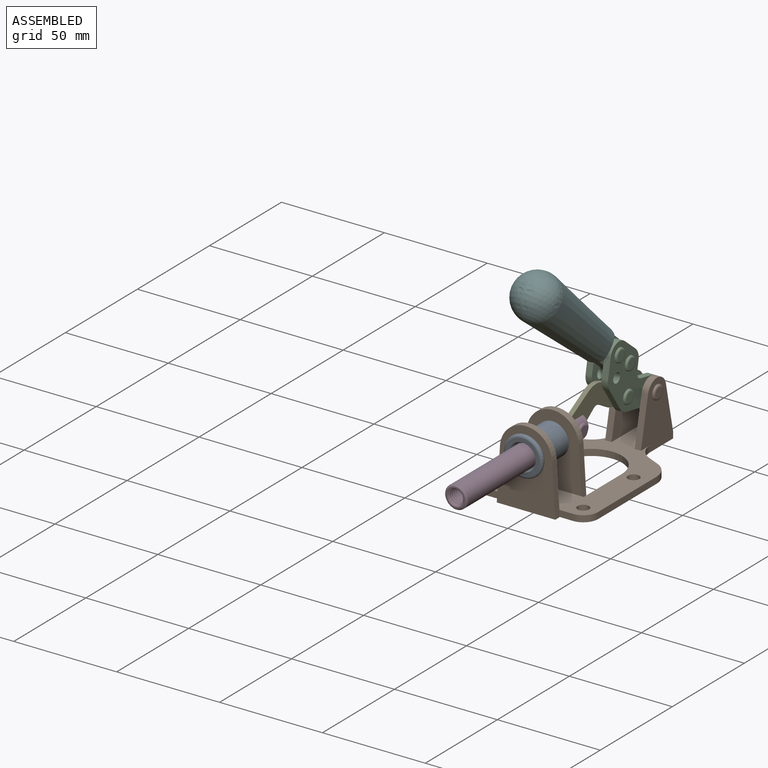
[diagram: assembled view]
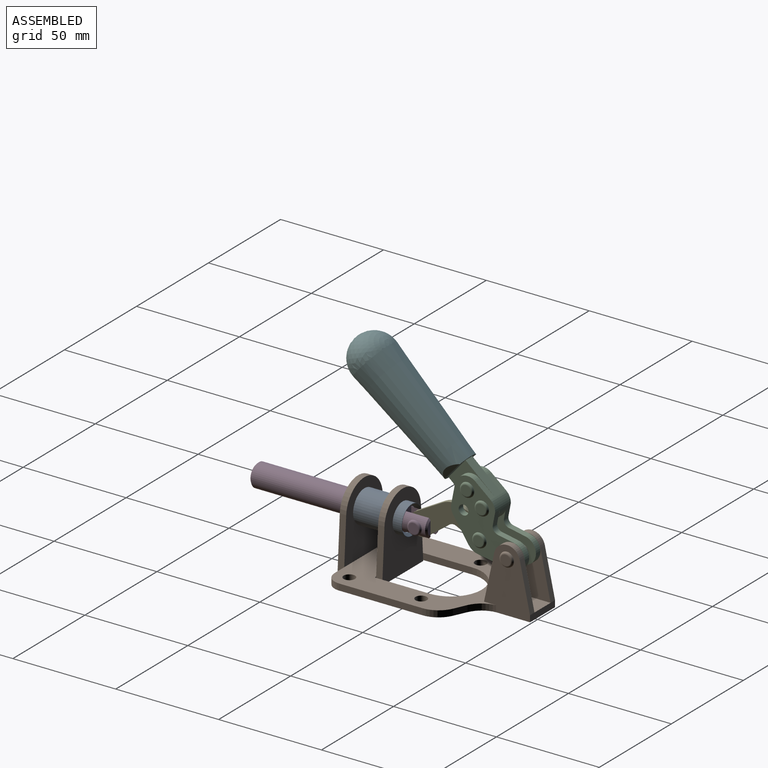
[diagram: assembled view, second angle]
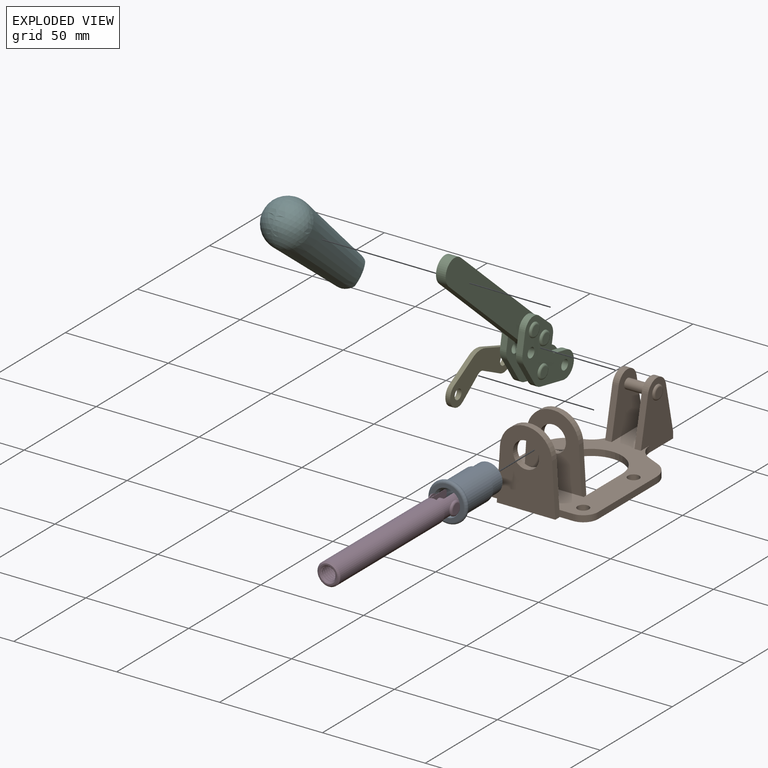
[diagram: exploded view]
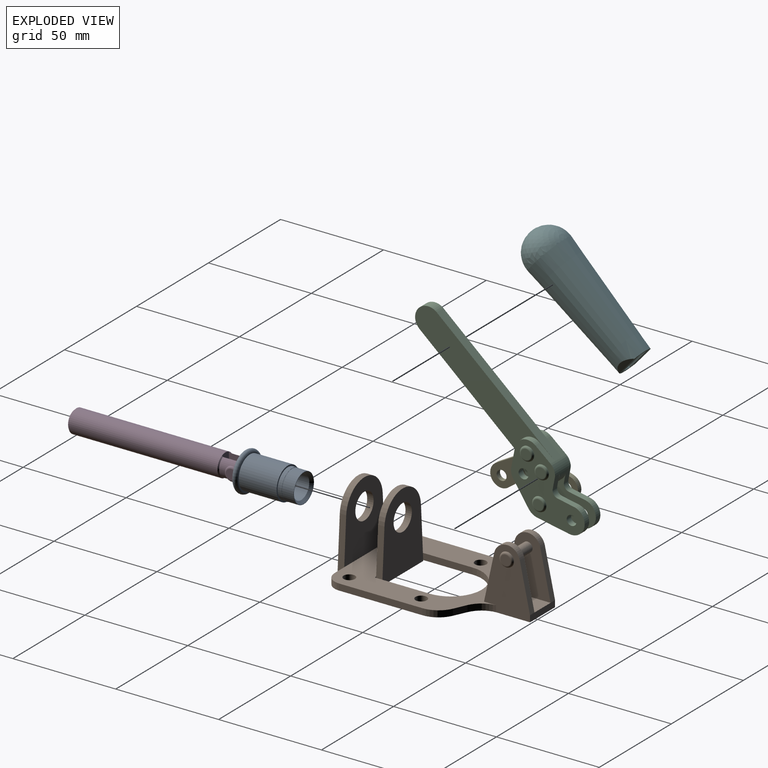
[diagram: exploded view, second angle]
ASSEMBLY  parts=6 mates=6
PART A: 15 faces, bbox 20.6x20.6x28.7 mm
  f0: torus R=8.26mm, axis (0,0,1), area 56.8mm2, adj f1,f10,f12
  f1: torus R=8.26mm, axis (0,0,1), area 56.8mm2, adj f0,f6,f13
  f2: cylinder r=5.59mm len=25.91mm, axis (0,0,1), area 909.6mm2, adj f3,f4
  f3: cone r=6.86mm half-angle=45deg, axis (0,0,-1), area 70.2mm2, adj f2,f14
  f4: cone r=6.47mm half-angle=30deg, axis (0,0,1), area 66.7mm2, adj f2,f13
  f5: cylinder r=7.04mm len=14.07mm, axis (0,0,1), area 252.6mm2, adj f11,f14
  f6: torus R=8.26mm, axis (0,0,1), area 56.8mm2, adj f1,f12,f13
  f7: cylinder r=7.16mm len=14.33mm, axis (0,0,1), area 91.5mm2, adj f9,f11
  f8: cylinder r=7.86mm len=18.42mm, axis (0,0,1), area 909.6mm2, adj f9,f10
  f9: plane 15.72x15.72mm, normal (0,0,-1), area 33mm2, adj f7,f8
  f10: plane 16.51x16.51mm, normal (0,0,-1), area 19.9mm2, adj f0,f8,f12
  f11: plane 14.33x14.33mm, normal (0,0,-1), area 5.7mm2, adj f5,f7
  f12: torus R=8.26mm, axis (0,0,1), area 56.8mm2, adj f0,f6,f10
  f13: plane 16.51x16.51mm, normal (0,0,1), area 82.7mm2, adj f1,f4,f6
  f14: plane 14.07x14.07mm, normal (0,0,-1), area 7.8mm2, adj f3,f5
PART B: 55 faces, bbox 55.7x37.4x89.8 mm
  f0: torus R=2.41mm, axis (-1,0,0), area 15mm2, adj f11,f15,f25
  f1: torus R=2.41mm, axis (-1,0,0), area 15mm2, adj f10,f12,f22
  f2: cylinder r=2.78mm len=5.56mm, axis (0,-1,0), area 54.2mm2, adj f30,f54
  f3: cylinder r=14.99mm len=29.97mm, axis (0,-1,0), area 145.9mm2, adj f30,f49,f53,f54
  f4: cylinder r=2.78mm len=5.56mm, axis (0,-1,0), area 54.2mm2, adj f30,f54
  f5: cylinder r=2.78mm len=5.56mm, axis (0,-1,0), area 54.2mm2, adj f30,f54
  f6: cylinder r=2.78mm len=5.56mm, axis (0,-1,0), area 54.2mm2, adj f30,f54
  f7: cylinder r=6.35mm len=12.7mm, axis (0,0,1), area 123.6mm2, adj f27,f51
  f8: cylinder r=6.35mm len=12.7mm, axis (0,0,-1), area 124.7mm2, adj f21,f35
  f9: cylinder r=2.41mm len=11.18mm, axis (-1,0,0), area 169.4mm2, adj f16,f19
  f10: plane 4.83x4.83mm, normal (1,0,0), area 18.3mm2, adj f1,f12
  f11: plane 4.83x4.83mm, normal (-1,0,0), area 18.3mm2, adj f0,f15
  f12: torus R=2.41mm, axis (-1,0,0), area 15mm2, adj f1,f10,f22
  f13: cylinder r=6.35mm len=12.41mm, axis (1,0,0), area 53.4mm2, adj f18,f19,f22,f23
  f14: cylinder r=6.35mm len=12.41mm, axis (-1,0,0), area 53.4mm2, adj f16,f17,f24,f25
  f15: torus R=2.41mm, axis (-1,0,0), area 15mm2, adj f0,f11,f25
  f16: plane 27.86x22.35mm, normal (1,0,0), area 425.4mm2, adj f9,f14,f17,f24,f30
  f17: plane 22.86x4.97mm, normal (0,0.21,0.98), area 72.5mm2, adj f14,f16,f25,f30
  f18: plane 22.86x4.97mm, normal (0,0.21,0.98), area 72.5mm2, adj f13,f19,f22,f30
  f19: plane 27.86x22.35mm, normal (-1,0,0), area 425.4mm2, adj f9,f13,f18,f23,f30
  f20: cylinder r=12.7mm len=25.35mm, axis (0,0,-1), area 119.8mm2, adj f21,f34,f35,f36
  f21: plane 34.21x28.07mm, normal (0,0,-1), area 702.4mm2, adj f8,f20,f30,f34,f36
  f22: plane 27.96x22.45mm, normal (1,0,0), area 407.2mm2, adj f1,f12,f13,f18,f23,f30,f42,f43
  f23: plane 22.86x4.97mm, normal (0,0.21,-0.98), area 72.5mm2, adj f13,f19,f22,f44
  f24: plane 22.86x4.97mm, normal (0,0.21,-0.98), area 72.5mm2, adj f14,f16,f25,f44
  f25: plane 27.86x22.35mm, normal (-1,0,0), area 407.1mm2, adj f0,f14,f15,f17,f24,f30,f45,f46
  f26: plane 3.1x0.95mm, normal (0,0,-1), area 2.7mm2, adj f30,f49,f50,f54
  f27: plane 34.21x28.07mm, normal (0,0,1), area 702.4mm2, adj f7,f28,f30,f50,f52
  f28: cylinder r=12.7mm len=25.35mm, axis (0,0,1), area 118.8mm2, adj f27,f50,f51,f52
  f29: plane 3.1x0.95mm, normal (0,0,-1), area 2.7mm2, adj f30,f52,f53,f54
  f30: plane 86.54x55.63mm, normal (0,1,0), area 2362.9mm2, adj f2,f3,f4,f5,f6,f16,f17,f18
  f31: plane 40.56x3.1mm, normal (-1,0,0), area 125.7mm2, adj f30,f32,f48,f54
  f32: cylinder r=7.11mm len=7.11mm, axis (0,-1,0), area 34.6mm2, adj f30,f31,f33,f54
  f33: plane 6.67x3.1mm, normal (0,0,1), area 20.4mm2, adj f30,f32,f34,f54
  f34: plane 25.39x3.13mm, normal (-1,0.06,0), area 79.5mm2, adj f20,f21,f33,f35,f54
  f35: plane 37.31x28.45mm, normal (0,0,1), area 789.9mm2, adj f8,f20,f34,f36,f54
  f36: plane 25.39x3.13mm, normal (1,0.06,0), area 79.5mm2, adj f20,f21,f35,f37,f54
  f37: plane 6.67x3.1mm, normal (0,0,1), area 20.4mm2, adj f30,f36,f38,f54
  f38: cylinder r=7.11mm len=7.11mm, axis (0,-1,0), area 34.6mm2, adj f30,f37,f39,f54
  f39: plane 40.56x3.1mm, normal (1,0,0), area 125.7mm2, adj f30,f38,f40,f54
  f40: cylinder r=11.18mm len=10.16mm, axis (0,-1,0), area 39.5mm2, adj f30,f39,f41,f54
  f41: plane 6.09x3.1mm, normal (0.42,0,-0.91), area 20.8mm2, adj f30,f40,f42,f54
  f42: cylinder r=11.18mm len=9.41mm, axis (0,-1,0), area 37.2mm2, adj f22,f30,f41,f43,f54
  f43: plane 16.5x3.1mm, normal (1,0,0), area 51.1mm2, adj f22,f42,f44,f54
  f44: plane 17.37x3.1mm, normal (0,0,-1), area 53.8mm2, adj f23,f24,f30,f43,f45,f54
  f45: plane 16.5x3.1mm, normal (-1,0,0), area 51.1mm2, adj f25,f44,f46,f54
  f46: cylinder r=11.18mm len=9.41mm, axis (0,-1,0), area 37.2mm2, adj f25,f30,f45,f47,f54
  f47: plane 6.09x3.1mm, normal (-0.42,0,-0.91), area 20.8mm2, adj f30,f46,f48,f54
  f48: cylinder r=11.18mm len=10.16mm, axis (0,-1,0), area 39.5mm2, adj f30,f31,f47,f54
  f49: plane 26.54x3.1mm, normal (-1,0,0), area 82.3mm2, adj f3,f26,f30,f54
  f50: plane 25.39x3.1mm, normal (1,0.06,0), area 78.8mm2, adj f26,f27,f28,f51,f54
  f51: plane 37.31x28.45mm, normal (0,0,-1), area 789.9mm2, adj f7,f28,f50,f52,f54
  f52: plane 25.39x3.1mm, normal (-1,0.06,0), area 78.8mm2, adj f27,f28,f29,f51,f54
  f53: plane 26.54x3.1mm, normal (1,0,0), area 82.3mm2, adj f3,f29,f30,f54
  f54: plane 89.66x55.63mm, normal (0,-1,0), area 2678.5mm2, adj f2,f3,f4,f5,f6,f26,f29,f31
PART C: 59 faces, bbox 12.9x60.2x99.6 mm
  f0: torus R=2.39mm, axis (-1,0,0), area 14.9mm2, adj f20,f43,f51
  f1: torus R=2.39mm, axis (-1,0,0), area 14.9mm2, adj f19,f42,f51
  f2: torus R=2.39mm, axis (-1,0,0), area 14.9mm2, adj f18,f35,f51
  f3: torus R=2.39mm, axis (-1,0,0), area 14.9mm2, adj f14,f17,f23
  f4: torus R=2.39mm, axis (-1,0,0), area 14.9mm2, adj f13,f16,f23
  f5: torus R=2.39mm, axis (-1,0,0), area 14.9mm2, adj f12,f15,f23
  f6: cylinder r=2.39mm len=4.78mm, axis (1,0,0), area 46.5mm2, adj f48,f50,f51
  f7: cylinder r=2.39mm len=4.78mm, axis (1,0,0), area 46.5mm2, adj f50,f51
  f8: cylinder r=6.35mm len=12.68mm, axis (1,0,0), area 61.8mm2, adj f38,f39,f50,f51
  f9: cylinder r=2.39mm len=4.78mm, axis (-1,0,0), area 70.5mm2, adj f46,f50
  f10: cylinder r=2.39mm len=4.78mm, axis (-1,0,0), area 46.5mm2, adj f23,f45,f46
  f11: cylinder r=2.39mm len=4.78mm, axis (-1,0,0), area 46.5mm2, adj f23,f46
  f12: plane 4.78x4.78mm, normal (1,0,0), area 17.9mm2, adj f5,f15
  f13: plane 4.78x4.78mm, normal (1,0,0), area 17.9mm2, adj f4,f16
  f14: plane 4.78x4.78mm, normal (1,0,0), area 17.9mm2, adj f3,f17
  f15: torus R=2.39mm, axis (-1,0,0), area 14.9mm2, adj f5,f12,f23
  f16: torus R=2.39mm, axis (-1,0,0), area 14.9mm2, adj f4,f13,f23
  f17: torus R=2.39mm, axis (-1,0,0), area 14.9mm2, adj f3,f14,f23
  f18: plane 4.78x4.78mm, normal (-1,0,0), area 17.9mm2, adj f2,f35
  f19: plane 4.78x4.78mm, normal (-1,0,0), area 17.9mm2, adj f1,f42
  f20: plane 4.78x4.78mm, normal (-1,0,0), area 17.9mm2, adj f0,f43
  f21: plane 2.26x0.2mm, normal (1,0,0), area 0.2mm2, adj f31,f44
  f22: plane 2.26x0.2mm, normal (-1,0,0), area 0.2mm2, adj f41,f44
  f23: plane 39.37x30.77mm, normal (1,0,0), area 565.5mm2, adj f3,f4,f5,f10,f11,f15,f16,f17
  f24: cylinder r=6.1mm len=4.15mm, axis (-1,0,0), area 14.7mm2, adj f23,f25,f32,f46
  f25: plane 10.25x9.01mm, normal (0,-0.75,0.66), area 42.3mm2, adj f23,f24,f26,f46
  f26: cylinder r=6.35mm len=4.64mm, axis (-1,0,0), area 15.6mm2, adj f23,f25,f27,f46
  f27: plane 15.84x3.1mm, normal (0,-1,-0.07), area 49.2mm2, adj f23,f26,f28,f46
  f28: cylinder r=6.35mm len=12.68mm, axis (-1,0,0), area 61.8mm2, adj f23,f27,f29,f46
  f29: plane 8.11x3.1mm, normal (0,1,0.07), area 25.2mm2, adj f23,f28,f30,f46
  f30: cylinder r=3.05mm len=3.25mm, axis (-1,0,0), area 14.8mm2, adj f23,f29,f31,f46
  f31: plane 5.99x3.1mm, normal (0,0.07,-1), area 18.6mm2, adj f21,f23,f30,f44,f46
  f32: plane 9.5x3.1mm, normal (0,-0.07,1), area 29.5mm2, adj f23,f24,f33,f46,f47
  f33: cylinder r=6.1mm len=8.63mm, axis (-1,0,0), area 39.1mm2, adj f23,f32,f34,f47
  f34: plane 8.65x3.96mm, normal (0,0.91,-0.42), area 29.5mm2, adj f23,f33,f44,f47
  f35: torus R=2.39mm, axis (-1,0,0), area 14.9mm2, adj f2,f18,f51
  f36: plane 10.25x9.01mm, normal (0,-0.75,0.66), area 42.3mm2, adj f37,f49,f50,f51
  f37: cylinder r=6.35mm len=4.64mm, axis (1,0,0), area 15.6mm2, adj f36,f38,f50,f51
  f38: plane 15.84x3.1mm, normal (0,-1,-0.07), area 49.2mm2, adj f8,f37,f50,f51
  f39: plane 8.11x3.1mm, normal (0,1,0.07), area 25.2mm2, adj f8,f40,f50,f51
  f40: cylinder r=3.05mm len=3.25mm, axis (1,0,0), area 14.8mm2, adj f39,f41,f50,f51
  f41: plane 5.99x3.1mm, normal (0,0.07,-1), area 18.6mm2, adj f22,f40,f44,f50,f51
  f42: torus R=2.39mm, axis (-1,0,0), area 14.9mm2, adj f1,f19,f51
  f43: torus R=2.39mm, axis (-1,0,0), area 14.9mm2, adj f0,f20,f51
  f44: cylinder r=6.35mm len=12.12mm, axis (-1,0,0), area 128.9mm2, adj f21,f22,f23,f31,f34,f41,f46,f47
  f45: plane 2.65x1.35mm, normal (1,0,0), area 1mm2, adj f10,f55
  f46: plane 39.08x20.42mm, normal (-1,0,0), area 412.5mm2, adj f9,f10,f11,f24,f25,f26,f27,f28
  f47: plane 77.62x39.82mm, normal (1,0,0), area 850mm2, adj f32,f33,f34,f44,f53,f54,f55
  f48: plane 2.65x1.35mm, normal (-1,0,0), area 1mm2, adj f6,f55
  f49: cylinder r=6.1mm len=4.15mm, axis (1,0,0), area 14.7mm2, adj f36,f50,f51,f56
  f50: plane 39.08x20.42mm, normal (1,0,0), area 412.5mm2, adj f6,f7,f8,f9,f36,f37,f38,f39
  f51: plane 39.37x30.77mm, normal (-1,0,0), area 565.5mm2, adj f0,f1,f2,f6,f7,f8,f35,f36
  f52: plane 8.65x3.96mm, normal (0,0.91,-0.42), area 29.5mm2, adj f44,f51,f57,f58
  f53: plane 68.49x33.4mm, normal (0,0.9,-0.44), area 358.1mm2, adj f44,f47,f54,f58
  f54: cylinder r=6.35mm len=12.06mm, axis (1,0,0), area 93.7mm2, adj f47,f53,f55,f58
  f55: plane 68.49x33.4mm, normal (0,-0.9,0.44), area 358.1mm2, adj f44,f45,f46,f47,f48,f50,f54,f58
  f56: plane 9.5x3.1mm, normal (0,-0.07,1), area 29.5mm2, adj f49,f50,f51,f57,f58
  f57: cylinder r=6.1mm len=8.63mm, axis (1,0,0), area 39.1mm2, adj f51,f52,f56,f58
  f58: plane 77.62x39.82mm, normal (-1,0,0), area 850mm2, adj f44,f52,f53,f54,f55,f56,f57
PART D: 48 faces, bbox 12.6x11.1x86.1 mm
  f0: torus R=2.41mm, axis (-1,0,0), area 15mm2, adj f30,f32,f34
  f1: torus R=2.41mm, axis (-1,0,0), area 15mm2, adj f29,f31,f33
  f2: cylinder r=5.54mm len=72.39mm, axis (0,0,1), area 2518.5mm2, adj f3,f4,f42,f43
  f3: cone r=5.54mm half-angle=45deg, axis (0,0,1), area 7.6mm2, adj f2,f5,f41
  f4: cone r=5.54mm half-angle=45deg, axis (0,0,-1), area 34.9mm2, adj f2,f39
  f5: cylinder r=5.08mm len=11.48mm, axis (0,0,1), area 108.3mm2, adj f3,f7,f8,f41
  f6: cylinder r=2.41mm len=4.83mm, axis (-1,0,0), area 71.2mm2, adj f40,f41
  f7: cylinder r=2.41mm len=4.83mm, axis (-1,0,0), area 7.6mm2, adj f5,f34
  f8: cone r=5.08mm half-angle=45deg, axis (0,0,1), area 10.6mm2, adj f5,f37,f41
  f9: cone r=3.98mm half-angle=45deg, axis (0,0,1), area 17.6mm2, adj f27,f39,f45,f46,f47
  f10: cylinder r=2.41mm len=4.83mm, axis (-1,0,0), area 7.6mm2, adj f33,f38
  f11: cylinder r=3.2mm len=6.4mm, axis (0,0,1), area 78.4mm2, adj f12,f28,f44,f45,f47
  f12: cylinder r=3.2mm len=6.4mm, axis (0,0,1), area 10.5mm2, adj f11,f13,f45,f47
  f13: cylinder r=3.2mm len=6.4mm, axis (0,0,1), area 10.5mm2, adj f12,f14,f45,f47
  f14: cylinder r=3.2mm len=6.4mm, axis (0,0,1), area 10.5mm2, adj f13,f15,f45,f47
  f15: cylinder r=3.2mm len=6.4mm, axis (0,0,1), area 10.5mm2, adj f14,f16,f45,f47
  f16: cylinder r=3.2mm len=6.4mm, axis (0,0,1), area 10.5mm2, adj f15,f17,f45,f47
  f17: cylinder r=3.2mm len=6.4mm, axis (0,0,1), area 10.5mm2, adj f16,f18,f45,f47
  f18: cylinder r=3.2mm len=6.4mm, axis (0,0,1), area 10.5mm2, adj f17,f19,f45,f47
  f19: cylinder r=3.2mm len=6.4mm, axis (0,0,1), area 10.5mm2, adj f18,f20,f45,f47
  f20: cylinder r=3.2mm len=6.4mm, axis (0,0,1), area 10.5mm2, adj f19,f21,f45,f47
  f21: cylinder r=3.2mm len=6.4mm, axis (0,0,1), area 10.5mm2, adj f20,f22,f45,f47
  f22: cylinder r=3.2mm len=6.4mm, axis (0,0,1), area 10.5mm2, adj f21,f23,f45,f47
  f23: cylinder r=3.2mm len=6.4mm, axis (0,0,1), area 10.5mm2, adj f22,f24,f45,f47
  f24: cylinder r=3.2mm len=6.4mm, axis (0,0,1), area 10.5mm2, adj f23,f25,f45,f47
  f25: cylinder r=3.2mm len=6.4mm, axis (0,0,1), area 10.5mm2, adj f24,f26,f45,f47
  f26: cylinder r=3.2mm len=6.4mm, axis (0,0,1), area 10.5mm2, adj f25,f27,f45,f47
  f27: cylinder r=3.2mm len=6.4mm, axis (0,0,1), area 7.4mm2, adj f9,f26,f45,f47
  f28: cone r=3.2mm half-angle=60deg, axis (0,0,1), area 37.2mm2, adj f11
  f29: plane 4.83x4.83mm, normal (-1,0,0), area 18.3mm2, adj f1,f31
  f30: plane 4.83x4.83mm, normal (1,0,0), area 18.3mm2, adj f0,f32
  f31: torus R=2.41mm, axis (-1,0,0), area 15mm2, adj f1,f29,f33
  f32: torus R=2.41mm, axis (-1,0,0), area 15mm2, adj f0,f30,f34
  f33: plane 6.83x6.83mm, normal (1,0,0), area 18.3mm2, adj f1,f10,f31
  f34: plane 6.83x6.83mm, normal (-1,0,0), area 18.3mm2, adj f0,f7,f32
  f35: cone r=5.08mm half-angle=45deg, axis (0,0,1), area 10.6mm2, adj f36,f38,f40
  f36: plane 7.25x1.97mm, normal (0,0,-1), area 10mm2, adj f35,f40
  f37: plane 7.25x1.97mm, normal (0,0,-1), area 10mm2, adj f8,f41
  f38: cylinder r=5.08mm len=11.48mm, axis (0,0,1), area 108.3mm2, adj f10,f35,f40,f42
  f39: plane 9.55x9.55mm, normal (0,0,1), area 22mm2, adj f4,f9
  f40: plane 12.76x10.09mm, normal (1,0,0), area 95.7mm2, adj f6,f35,f36,f38,f42,f43
  f41: plane 12.76x10.09mm, normal (-1,0,0), area 95.7mm2, adj f3,f5,f6,f8,f37,f43
  f42: cone r=5.54mm half-angle=45deg, axis (0,0,1), area 7.6mm2, adj f2,f38,f40
  f43: plane 11.07x4.7mm, normal (0,0,-1), area 50.4mm2, adj f2,f40,f41
  f44: plane 0.89x0.62mm, normal (-1,0,0), area 0.3mm2, adj f11,f45,f46,f47
  f45: bspline ~24.8x7.63mm, area 266.6mm2, adj f9,f11,f12,f13,f14,f15,f16,f17
  f46: bspline ~24.87x7.63mm, area 73.6mm2, adj f9,f44,f45,f47
  f47: bspline ~24.98x7.63mm, area 272.5mm2, adj f9,f11,f12,f13,f14,f15,f16,f17
PART E: 12 faces, bbox 2.3x18.2x42.8 mm
  f0: cylinder r=2.4mm len=4.8mm, axis (1,0,0), area 34.9mm2, adj f4,f11
  f1: cylinder r=10.41mm len=8.47mm, axis (1,0,0), area 20.2mm2, adj f4,f9,f10,f11
  f2: cylinder r=3.05mm len=3.16mm, axis (1,0,0), area 7.7mm2, adj f4,f6,f7,f11
  f3: cylinder r=2.4mm len=4.8mm, axis (1,0,0), area 34.9mm2, adj f4,f11
  f4: plane 42.81x18.23mm, normal (-1,0,0), area 414.1mm2, adj f0,f1,f2,f3,f5,f6,f7,f8
  f5: cylinder r=5.54mm len=10.67mm, axis (1,0,0), area 41.8mm2, adj f4,f6,f10,f11
  f6: plane 11.66x6.53mm, normal (0,-0.87,-0.49), area 30.9mm2, adj f2,f4,f5,f11
  f7: plane 11.17x7.33mm, normal (0,-0.84,0.55), area 30.9mm2, adj f2,f4,f8,f11
  f8: cylinder r=5.54mm len=10.51mm, axis (1,0,0), area 41.8mm2, adj f4,f7,f9,f11
  f9: plane 13.67x6.67mm, normal (0,0.9,-0.44), area 35.1mm2, adj f1,f4,f8,f11
  f10: plane 14.1x5.7mm, normal (0,0.93,0.37), area 35.1mm2, adj f1,f4,f5,f11
  f11: plane 42.81x18.23mm, normal (1,0,0), area 414.1mm2, adj f0,f1,f2,f3,f5,f6,f7,f8
PART F: 11 faces, bbox 22.3x42.6x64.5 mm
  f0: sphere r=11.13mm, area 411.4mm2, adj f1,f8
  f1: cone r=11.11mm half-angle=3.3deg, axis (0,0.44,0.9), area 3251.8mm2, adj f0,f7,f8,f9,f10
  f2: cylinder r=6.16mm len=11.7mm, axis (1,0,0), area 89.5mm2, adj f3,f4,f5,f6
  f3: plane 60.23x36.75mm, normal (-1,0,0), area 763.6mm2, adj f2,f4,f6,f10
  f4: plane 51.37x25.05mm, normal (0,0.9,-0.44), area 264.2mm2, adj f2,f3,f5,f10
  f5: plane 60.23x36.75mm, normal (1,0,0), area 763.6mm2, adj f2,f4,f6,f10
  f6: plane 51.37x25.05mm, normal (0,-0.9,0.44), area 264.2mm2, adj f2,f3,f5,f10
  f7: plane 9.95x5.95mm, normal (0.71,-0.31,-0.64), area 25.8mm2, adj f1,f10
  f8: sphere r=11.13mm, area 411.4mm2, adj f0,f1
  f9: plane 9.95x5.95mm, normal (-0.71,-0.31,-0.64), area 25.8mm2, adj f1,f10
  f10: plane 14.27x11.38mm, normal (0,-0.44,-0.9), area 106.7mm2, adj f1,f3,f4,f5,f6,f7,f9
PLACE A rot(axis=(1,0,0),90deg) t=(0,9.14,0)mm
PLACE B rot(axis=(1,0,0),90deg) t=(0,9.14,0)mm fixed
PLACE C rot(axis=(1,0,0),75deg) t=(0,3.86,9.14)mm
PLACE D rot(axis=(1,0,0),90deg) t=(0,9.52,0)mm
PLACE E rot(axis=(1,0,0),97.5deg) t=(0,12.59,2.22)mm
PLACE F rot(axis=(1,0,0),75deg) t=(-0.04,3.86,9.14)mm
MATE revolute B.f0 <-> C.f7  axis (-1,0,0) through (0,41.23,24.61)mm
MATE revolute E.f3 <-> C.f4  axis (1,0,0) through (0,25.65,27.64)mm
MATE fastened A.f2 <-> B.f7  axis (0,1,0) through (0,-37.25,24.61)mm
MATE revolute E.f5 <-> D.f6  axis (1,0,0) through (0,-5.96,24.61)mm
MATE fastened F.f2 <-> C.f54  axis (1,0,0) through (-2.35,-30.66,91.94)mm
MATE slider D.f2 <-> B.f7  axis (0,-1,0) through (0,-49.26,24.61)mm
